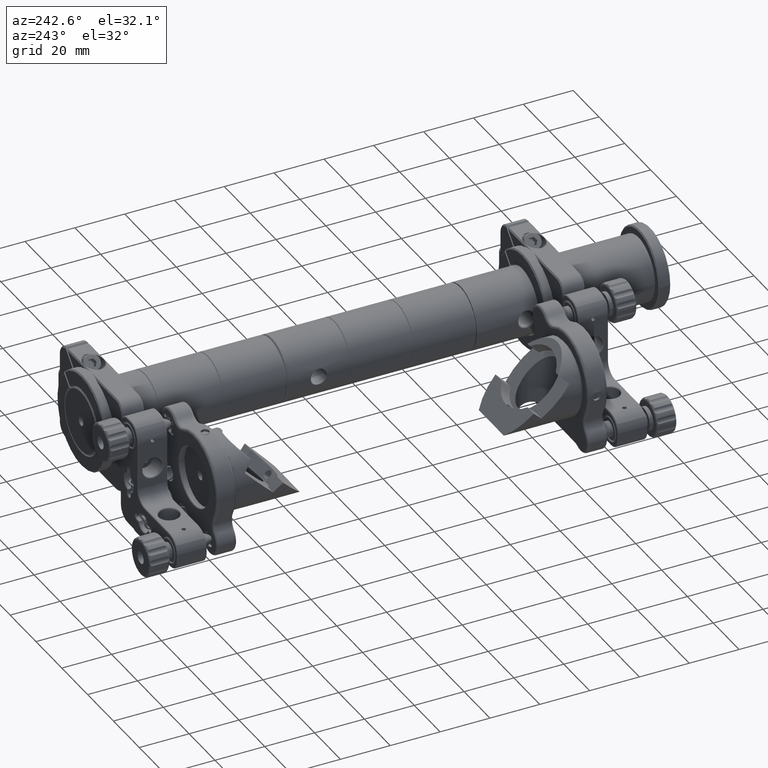
[diagram: clean part render]
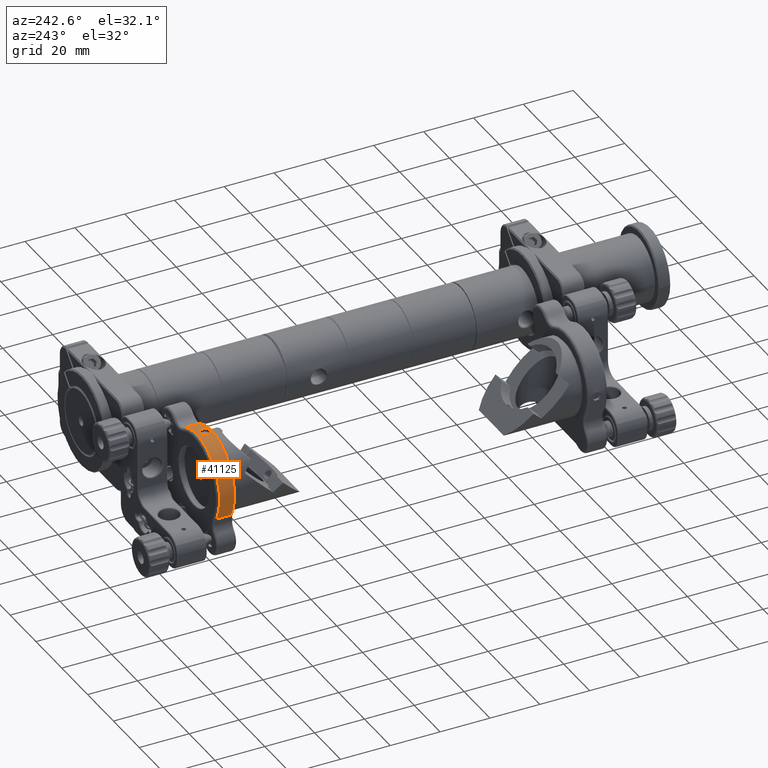
[diagram: same view with one face highlighted and labeled with its STEP entity id]
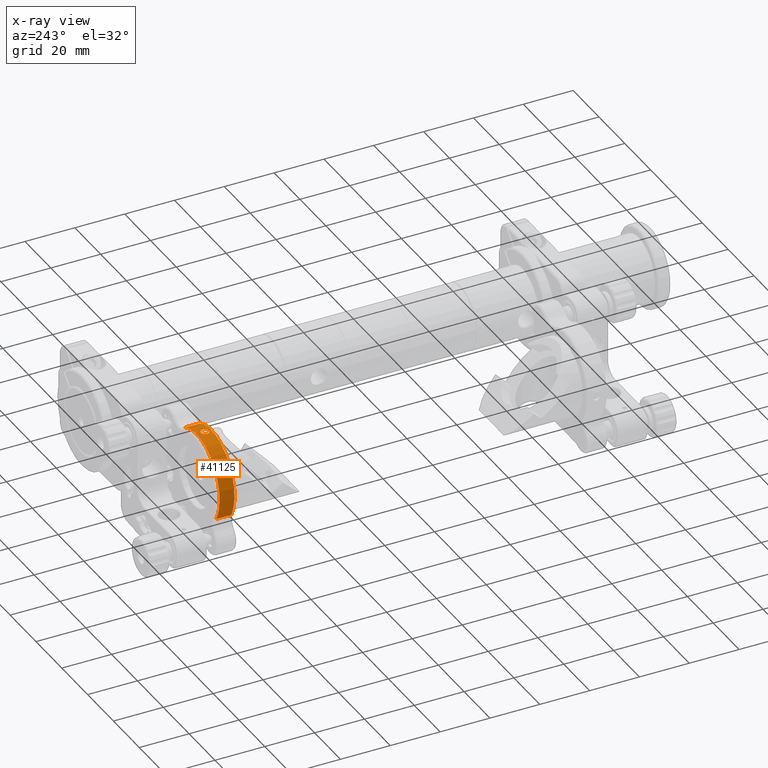
[diagram: x-ray of the same camera — body ghosted, the highlighted face saturated]
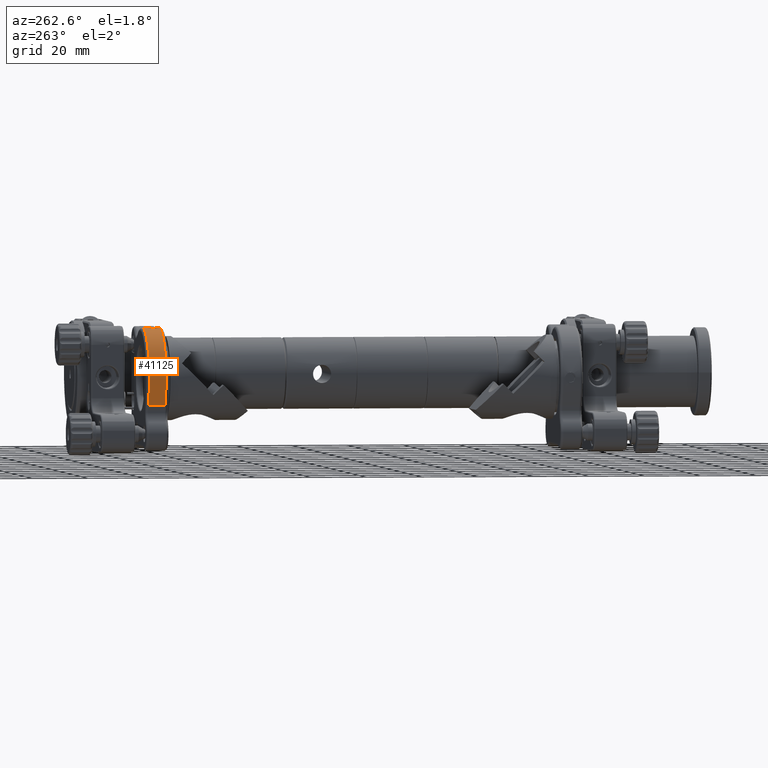
[diagram: same view with one face highlighted and labeled with its STEP entity id]
A machine part, auxiliary view. The second image highlights one B-rep face of the part: STEP entity #41125.
The next image is the same camera in x-ray: the body ghosted, the highlighted face saturated — about 0% of this face is hidden behind the body in this view.
A second angle (auxiliary view) of the same face is appended — the face is thin or edge-on in the first view.
In plain terms, the highlighted cylindrical surface (partial cylindrical patch) has radius 18 mm, axis along (-0, -1, 0).
Its self-contained STEP definition (entity closure, byte-faithful):
#610 = CARTESIAN_POINT ( 'NONE',  ( -51.90000000000008400, -4.064702524754070000, 17.99999999999997200 ) ) ;
#908 = ORIENTED_EDGE ( 'NONE', *, *, #53774, .T. ) ;
#1365 = CARTESIAN_POINT ( 'NONE',  ( -50.41771116865547200, -1.681899384273199500, 17.93891165378881100 ) ) ;
#1564 = CARTESIAN_POINT ( 'NONE',  ( -50.33478725525346000, -1.881514297286156000, 17.93186662245879900 ) ) ;
#1662 = ORIENTED_EDGE ( 'NONE', *, *, #6574, .T. ) ;
#2856 = CARTESIAN_POINT ( 'NONE',  ( -52.99088959109217700, -3.657294415014444900, 17.96707459363223000 ) ) ;
#3056 = CARTESIAN_POINT ( 'NONE',  ( -52.98990400567252100, -1.171128032743009800, 17.96713851479761800 ) ) ;
#3452 = CARTESIAN_POINT ( 'NONE',  ( -53.54992202270112500, -2.630662474477692300, 17.92422264214322400 ) ) ;
#5898 = CARTESIAN_POINT ( 'NONE',  ( -50.26085692662744000, -2.197277223743251200, 17.92522402656860000 ) ) ;
#6574 = EDGE_CURVE ( 'NONE', #25449, #39115, #25241, .T. ) ;
#7477 = CARTESIAN_POINT ( 'NONE',  ( -67.38381854249449500, 1.085297475245917900, -9.178854141073694400 ) ) ;
#7802 = CARTESIAN_POINT ( 'NONE',  ( -50.65643597991153500, -3.504484020228435500, 17.95715323903400700 ) ) ;
#8172 = CARTESIAN_POINT ( 'NONE',  ( -52.32867584157280300, -0.8177144608808492000, 17.99520572068133000 ) ) ;
#10229 = CARTESIAN_POINT ( 'NONE',  ( -51.07032656264153300, -0.9723674641626142100, 17.98196657297467400 ) ) ;
#11377 = VECTOR ( 'NONE', #51941, 1000.000000000000000 ) ;
#11799 = CARTESIAN_POINT ( 'NONE',  ( -51.90000000000012600, -0.7647025247540868400, 17.99999999999996400 ) ) ;
#12124 = CARTESIAN_POINT ( 'NONE',  ( -52.00771544539128400, -0.7647025247540871800, 17.99999999999996400 ) ) ;
#12325 = CARTESIAN_POINT ( 'NONE',  ( -53.38324844783981900, -1.683834292015242500, 17.93883207972473000 ) ) ;
#12527 = CARTESIAN_POINT ( 'NONE',  ( -51.06834474226963700, -3.855890569765387800, 17.98187340578105900 ) ) ;
#13112 = FACE_BOUND ( 'NONE', #34852, .T. ) ;
#14085 = EDGE_LOOP ( 'NONE', ( #21785, #25495, #42549, #22958 ) ) ;
#14549 = CARTESIAN_POINT ( 'NONE',  ( -51.90000000000004100, 1.085297475245918800, -3.469446951953614200E-014 ) ) ;
#15363 = CARTESIAN_POINT ( 'NONE',  ( -50.41668851186700800, -3.145449703837667000, 17.93882688292989500 ) ) ;
#15484 = CARTESIAN_POINT ( 'NONE',  ( -52.32730513195875900, -4.012037265077112600, 17.99523664135238500 ) ) ;
#16656 = CARTESIAN_POINT ( 'NONE',  ( -53.14394445099591700, -1.325220784843714300, 17.95713115601547100 ) ) ;
#17031 = CARTESIAN_POINT ( 'NONE',  ( -52.90602888916722400, -3.726964460550751500, 17.97208854099338600 ) ) ;
#17223 = CARTESIAN_POINT ( 'NONE',  ( -53.34197841447600300, -3.244998676308597800, 17.94233872388886700 ) ) ;
#17251 = CARTESIAN_POINT ( 'NONE',  ( -51.90000000000004100, -4.914702524754079400, -3.469446951953614200E-014 ) ) ;
#17627 = VECTOR ( 'NONE', #47709, 1000.000000000000000 ) ;
#18398 = EDGE_CURVE ( 'NONE', #33282, #49199, #43226, .T. ) ;
#19043 = LINE ( 'NONE', #25159, #17627 ) ;
#19104 = DIRECTION ( 'NONE',  ( 2.312964634635742700E-015, -9.637352644315595200E-017, -1.000000000000000000 ) ) ;
#19122 = CARTESIAN_POINT ( 'NONE',  ( -50.24991560458592900, -2.522381602206681600, 17.92420769504967400 ) ) ;
#19515 = CARTESIAN_POINT ( 'NONE',  ( -50.33397103773825900, -2.945511058901099300, 17.93179511917066900 ) ) ;
#19553 = CARTESIAN_POINT ( 'NONE',  ( -42.72114585892646200, -4.914702524754078500, 15.48381854249446700 ) ) ;
#20622 = CARTESIAN_POINT ( 'NONE',  ( -51.90000000000008400, -4.064702524754070000, 17.99999999999997200 ) ) ;
#20936 = EDGE_CURVE ( 'NONE', #54860, #33282, #57861, .T. ) ;
#21234 = CARTESIAN_POINT ( 'NONE',  ( -50.58684631315764300, -3.419560514869859300, 17.95213694240615600 ) ) ;
#21620 = CARTESIAN_POINT ( 'NONE',  ( -52.43154339361465300, -0.8489237157101379200, 17.99242789687472700 ) ) ;
#21785 = ORIENTED_EDGE ( 'NONE', *, *, #18398, .T. ) ;
#22212 = DIRECTION ( 'NONE',  ( 2.312964634635742700E-015, -9.637352644315595200E-017, -1.000000000000000000 ) ) ;
#22958 = ORIENTED_EDGE ( 'NONE', *, *, #20936, .T. ) ;
#24281 = CARTESIAN_POINT ( 'NONE',  ( -51.90000000000012600, -0.7647025247540868400, 17.99999999999996400 ) ) ;
#25121 = CARTESIAN_POINT ( 'NONE',  ( -51.90000000000004100, 2.085297475245918800, -3.469446951953614200E-014 ) ) ;
#25159 = CARTESIAN_POINT ( 'NONE',  ( -42.72114585892646200, 2.085297475245920600, 15.48381854249446700 ) ) ;
#25201 = CARTESIAN_POINT ( 'NONE',  ( -52.11632744657946100, -4.053992122200944500, 17.99900924745377400 ) ) ;
#25241 = B_SPLINE_CURVE_WITH_KNOTS ( 'NONE', 3,
 ( #20622, #42808, #25201, #15484, #28966, #47353, #35290, #17031, #2856, #39441, #17223, #48919, #3452, #44170, #30734, #48531, #35094, #12325, #39236, #57583, #16656, #3056, #48730, #34519, #30335, #21620, #8172, #48333, #12124, #52475 ),
 .UNSPECIFIED., .F., .F.,
 ( 4, 2, 2, 2, 2, 2, 2, 2, 2, 2, 2, 2, 2, 2, 4 ),
 ( 0.0000000000000000000, 0.0003225849793450108000, 0.0006451699586900215900, 0.0009677549380350318400, 0.001290339917380042100, 0.001935509876070078600, 0.002580679834760115000, 0.002903264814105133600, 0.003225849793450151800, 0.003548434772795170400, 0.003871019752140189400, 0.004193604731485208400, 0.004516189710830226600, 0.004838774690175245600, 0.005161359669520264700 ),
 .UNSPECIFIED. ) ;
#25449 = VERTEX_POINT ( 'NONE', #610 ) ;
#25495 = ORIENTED_EDGE ( 'NONE', *, *, #34985, .T. ) ;
#25684 = CIRCLE ( 'NONE', #46302, 18.00000000000000000 ) ;
#25993 = CARTESIAN_POINT ( 'NONE',  ( -51.46519666118630500, -4.020821917996885400, 17.99584306738096000 ) ) ;
#26588 = CYLINDRICAL_SURFACE ( 'NONE', #35210, 18.00000000000000000 ) ;
#27470 = DIRECTION ( 'NONE',  ( -1.001483571081362800E-032, -1.000000000000000000, 1.510687451236858300E-017 ) ) ;
#28838 = CARTESIAN_POINT ( 'NONE',  ( -50.46843638953630100, -1.587206993422020300, 17.94308327894752300 ) ) ;
#28966 = CARTESIAN_POINT ( 'NONE',  ( -52.43213398744589400, -3.980279291578991500, 17.99241025001573400 ) ) ;
#29276 = DIRECTION ( 'NONE',  ( -1.001483571081362800E-032, -1.000000000000000000, 1.510687451236858300E-017 ) ) ;
#30335 = CARTESIAN_POINT ( 'NONE',  ( -52.63142031406901100, -0.9317237715975504900, 17.98541143059280900 ) ) ;
#30345 = CARTESIAN_POINT ( 'NONE',  ( -51.90000000000008400, -4.064702524754070000, 17.99999999999997200 ) ) ;
#30734 = CARTESIAN_POINT ( 'NONE',  ( -53.53929472403286400, -2.198234729202584300, 17.92521020163179900 ) ) ;
#32893 = CARTESIAN_POINT ( 'NONE',  ( -42.72114585892646200, 1.085297475245920100, 15.48381854249446700 ) ) ;
#33016 = CARTESIAN_POINT ( 'NONE',  ( -50.30294303610347800, -1.986365238757988600, 17.92902271379360400 ) ) ;
#33282 = VERTEX_POINT ( 'NONE', #7477 ) ;
#34519 = CARTESIAN_POINT ( 'NONE',  ( -52.72789999602553500, -0.9833985716855282400, 17.98117300802123000 ) ) ;
#34852 = EDGE_LOOP ( 'NONE', ( #1662, #908 ) ) ;
#34985 = EDGE_CURVE ( 'NONE', #49199, #44045, #25684, .T. ) ;
#35094 = CARTESIAN_POINT ( 'NONE',  ( -53.46595240986339100, -1.883677683819999600, 17.93180178879476500 ) ) ;
#35105 = CARTESIAN_POINT ( 'NONE',  ( -50.88450511954106000, -3.732872038705285600, 17.97197779423843400 ) ) ;
#35210 = AXIS2_PLACEMENT_3D ( 'NONE', #25121, #29276, #56145 ) ;
#35290 = CARTESIAN_POINT ( 'NONE',  ( -52.72669947111157300, -3.846726790764835700, 17.98122989774638800 ) ) ;
#37354 = CARTESIAN_POINT ( 'NONE',  ( -51.46747294551656200, -0.8079639689181978800, 17.99589953826640000 ) ) ;
#37950 = CARTESIAN_POINT ( 'NONE',  ( -50.26055443288895200, -2.629827295739365600, 17.92519618374211300 ) ) ;
#39115 = VERTEX_POINT ( 'NONE', #11799 ) ;
#39236 = CARTESIAN_POINT ( 'NONE',  ( -53.33158342021399500, -1.587283430359771800, 17.94308102210107900 ) ) ;
#39441 = CARTESIAN_POINT ( 'NONE',  ( -53.21906982687895700, -3.429026740472670600, 17.95225036044821500 ) ) ;
#41125 = ADVANCED_FACE ( 'NONE', ( #13112, #50601 ), #26588, .T. ) ;
#41480 = B_SPLINE_CURVE_WITH_KNOTS ( 'NONE', 3,
 ( #24281, #46431, #37354, #10229, #55909, #51145, #55498, #28838, #1365, #1564, #33016, #5898, #46231, #19122, #37950, #46641, #19515, #15363, #47025, #21234, #7802, #35105, #12527, #25993, #57593, #30345 ),
 .UNSPECIFIED., .F., .F.,
 ( 4, 2, 2, 2, 2, 2, 2, 2, 2, 2, 2, 2, 4 ),
 ( 0.005161359669520264700, 0.005806379222769855900, 0.006451398776019448000, 0.006773908552644243200, 0.007096418329269039300, 0.007418928105893833600, 0.007741437882518629700, 0.008063947659143425700, 0.008386457435768221800, 0.008708967212393017900, 0.009031476989017812200, 0.009676496542267418200, 0.01032151609551702600 ),
 .UNSPECIFIED. ) ;
#42549 = ORIENTED_EDGE ( 'NONE', *, *, #48393, .F. ) ;
#42808 = CARTESIAN_POINT ( 'NONE',  ( -52.00908093674290500, -4.064702524754072700, 17.99999999999990400 ) ) ;
#43226 = LINE ( 'NONE', #47420, #11377 ) ;
#43920 = AXIS2_PLACEMENT_3D ( 'NONE', #14549, #27470, #19104 ) ;
#44045 = VERTEX_POINT ( 'NONE', #19553 ) ;
#44170 = CARTESIAN_POINT ( 'NONE',  ( -53.55003882686556700, -2.307617441497483900, 17.92421188982555700 ) ) ;
#46231 = CARTESIAN_POINT ( 'NONE',  ( -50.25008539700281300, -2.304452361367938200, 17.92422332515648600 ) ) ;
#46302 = AXIS2_PLACEMENT_3D ( 'NONE', #17251, #48946, #22212 ) ;
#46431 = CARTESIAN_POINT ( 'NONE',  ( -51.68461933160899200, -0.7647025247540867300, 17.99999999999997500 ) ) ;
#46641 = CARTESIAN_POINT ( 'NONE',  ( -50.30233651407513700, -2.840768036564103000, 17.92896849734823700 ) ) ;
#47025 = CARTESIAN_POINT ( 'NONE',  ( -50.46730554214023100, -3.240231916105515100, 17.94299250388823500 ) ) ;
#47353 = CARTESIAN_POINT ( 'NONE',  ( -52.63194254056903500, -3.897422090525843900, 17.98538999584862800 ) ) ;
#47420 = CARTESIAN_POINT ( 'NONE',  ( -67.38381854249449500, 2.085297475245917900, -9.178854141073694400 ) ) ;
#47709 = DIRECTION ( 'NONE',  ( -1.001483571081362800E-032, -1.000000000000000000, 1.510687451236858300E-017 ) ) ;
#48333 = CARTESIAN_POINT ( 'NONE',  ( -52.11712627130395200, -0.7754984387381531600, 17.99900130810317500 ) ) ;
#48393 = EDGE_CURVE ( 'NONE', #54860, #44045, #19043, .T. ) ;
#48531 = CARTESIAN_POINT ( 'NONE',  ( -53.49713576757314800, -1.986563717015916900, 17.92901573720278900 ) ) ;
#48730 = CARTESIAN_POINT ( 'NONE',  ( -52.90656584715841900, -1.102881422307923100, 17.97205682005107600 ) ) ;
#48919 = CARTESIAN_POINT ( 'NONE',  ( -53.50655933697586200, -2.847900567081866900, 17.92835150612996000 ) ) ;
#48946 = DIRECTION ( 'NONE',  ( 1.001483571081362800E-032, 1.000000000000000000, -1.510687451236858300E-017 ) ) ;
#49199 = VERTEX_POINT ( 'NONE', #57383 ) ;
#50601 = FACE_OUTER_BOUND ( 'NONE', #14085, .T. ) ;
#51145 = CARTESIAN_POINT ( 'NONE',  ( -50.65797660404459900, -1.323169228357864000, 17.95726019711620900 ) ) ;
#51941 = DIRECTION ( 'NONE',  ( -1.001483571081362800E-032, -1.000000000000000000, 1.510687451236858300E-017 ) ) ;
#52475 = CARTESIAN_POINT ( 'NONE',  ( -51.90000000000012600, -0.7647025247540868400, 17.99999999999996400 ) ) ;
#53774 = EDGE_CURVE ( 'NONE', #39115, #25449, #41480, .T. ) ;
#54860 = VERTEX_POINT ( 'NONE', #32893 ) ;
#55498 = CARTESIAN_POINT ( 'NONE',  ( -50.58828550175865500, -1.407961098030259300, 17.95224267330278400 ) ) ;
#55909 = CARTESIAN_POINT ( 'NONE',  ( -50.88628235680321400, -1.095178082827572300, 17.97207946098654600 ) ) ;
#56145 = DIRECTION ( 'NONE',  ( 2.312964634635742700E-015, -9.637352644315595200E-017, -1.000000000000000000 ) ) ;
#57383 = CARTESIAN_POINT ( 'NONE',  ( -67.38381854249449500, -4.914702524754080300, -9.178854141073694400 ) ) ;
#57583 = CARTESIAN_POINT ( 'NONE',  ( -53.21213777905286700, -1.408547519010898500, 17.95221106447608200 ) ) ;
#57593 = CARTESIAN_POINT ( 'NONE',  ( -51.68188898556675800, -4.064702524754064700, 17.99999999999990400 ) ) ;
#57861 = CIRCLE ( 'NONE', #43920, 18.00000000000000000 ) ;